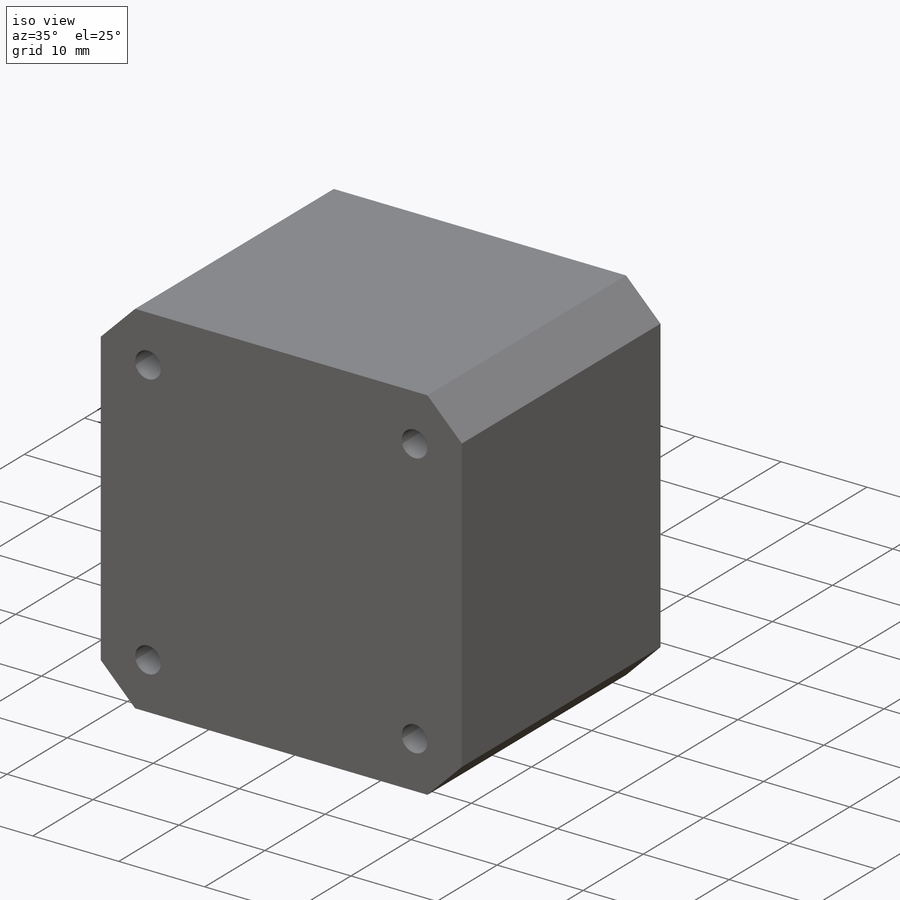
[diagram: iso view]
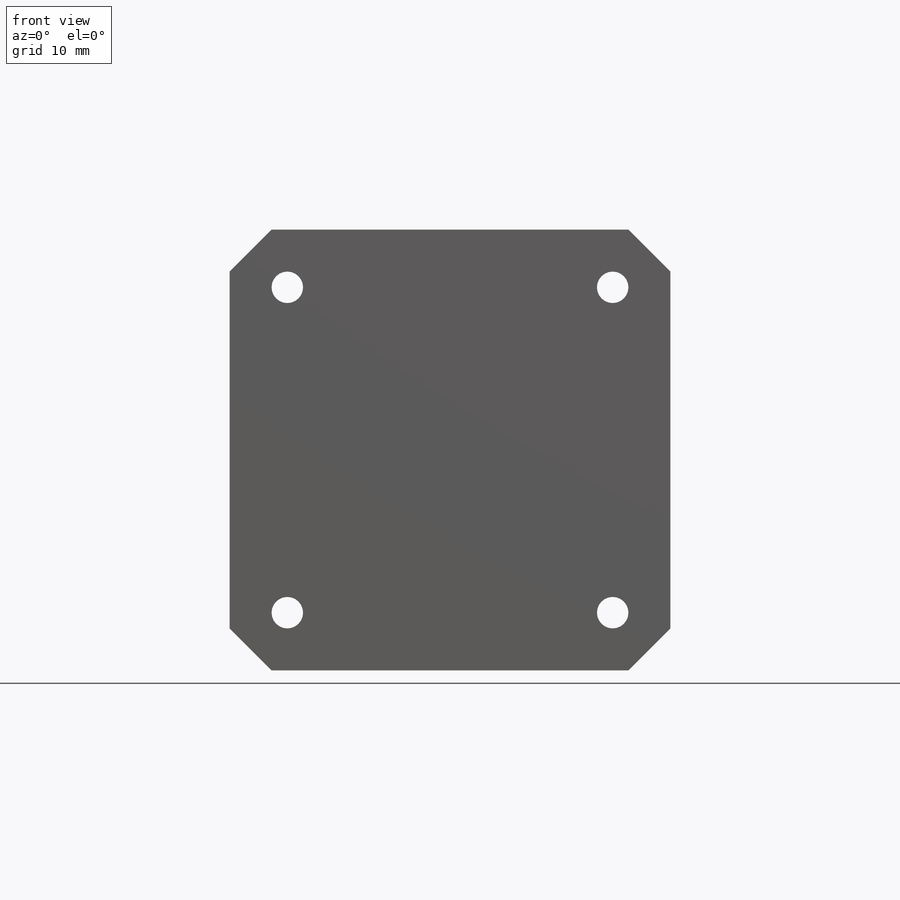
[diagram: front view]
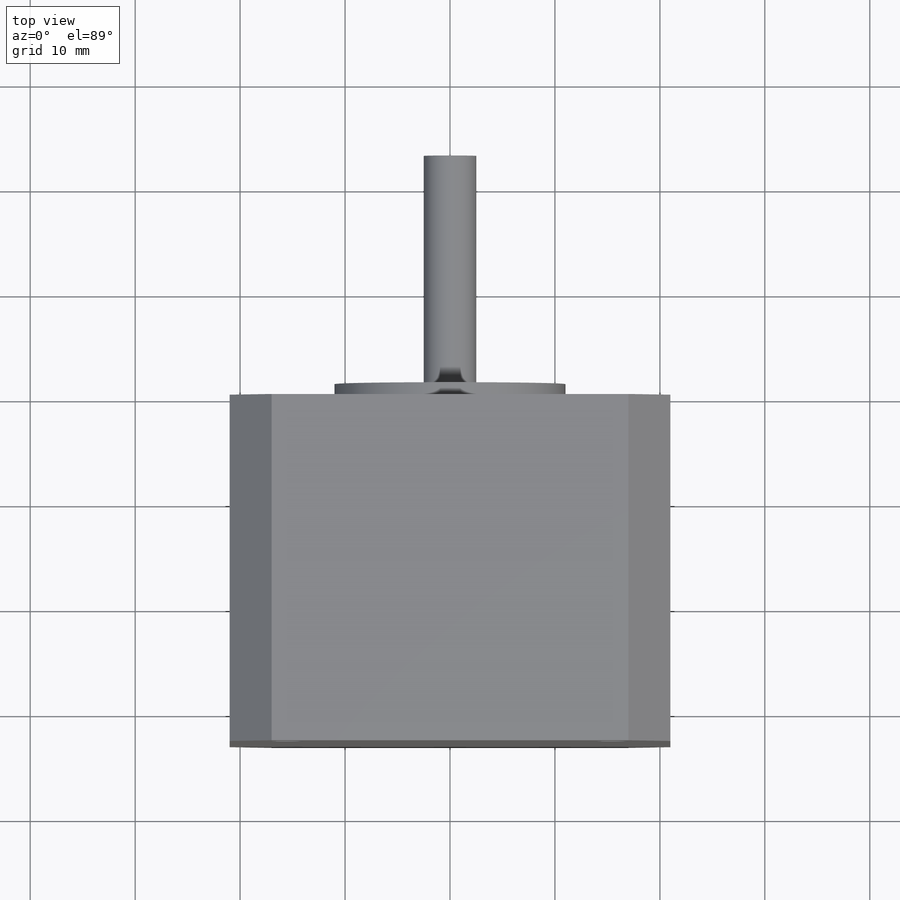
[diagram: top view]
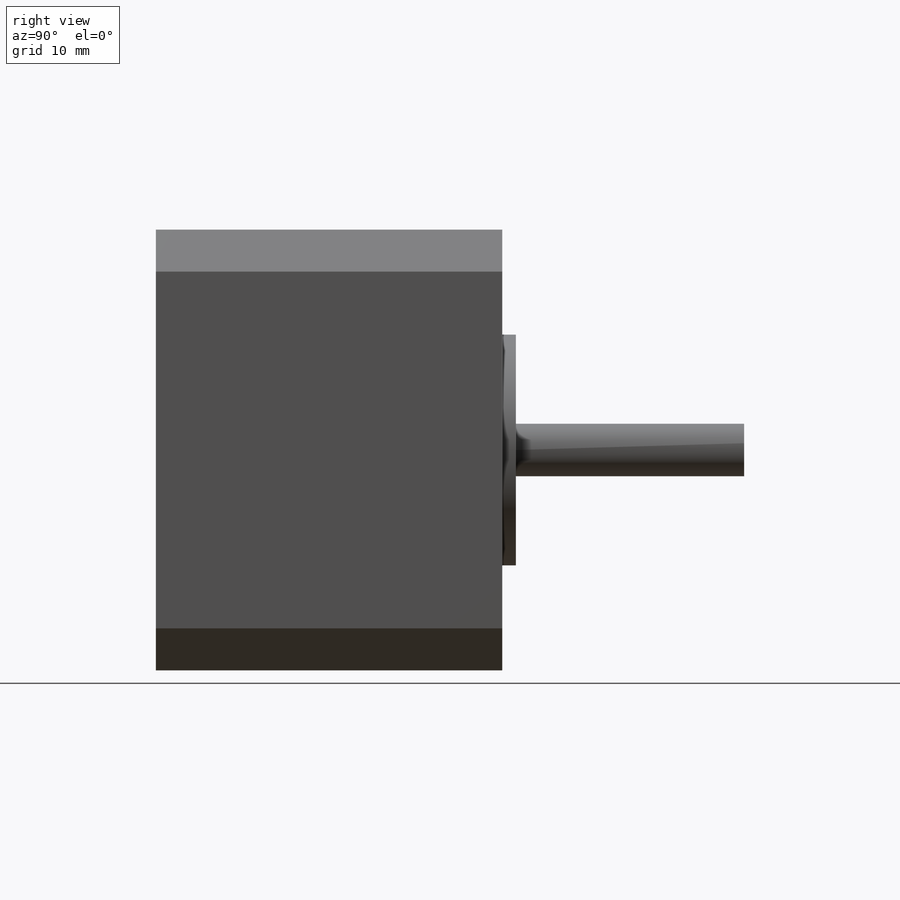
[diagram: right view]
SOLIDWORKS PART (.sldprt)
format: sldprt  version: not decoded by parser v0  size: 198,656 bytes
history: native  units: mm
features: sketch x4, plane x3, extrude x3, material x1, chamfer x1, cut_extrude x1 + 1 further entry (+9 scaffold rows collapsed)
feature tree (23):
  scaffold x9  (default folders/planes/origin — collapsed)
  material  "Materiał <nieokreślony>"
  plane  "Przednia"
  plane  "Górna"
  plane  "Prawa"
  "Początek ukł. współrzędnych"
  sketch  "Szkic1"  dims[D1=42.0mm D2=42.0mm]
  extrude  "Dodanie-wyciągnięcie1"  Depth=33mm
  chamfer  "Sfazowanie1"  Distance=4mm Angle=45deg
  sketch  "Szkic2"  dims[D1=22.0mm]
  extrude  "Dodanie-wyciągnięcie2"  Depth=1.3mm
  sketch  "Szkic3"  dims[D1=5.0mm]
  extrude  "Dodanie-wyciągnięcie3"  Depth=21.75mm
  sketch  "Szkic4"  dims[D2=3.0mm D1=31.0mm D3=31.0mm]
  cut_extrude  "Wytnij-wyciągnięcie1"  [1 undecoded]
decode coverage: 8 of 9 modeling features carry decoded parameters; 1 rows unclassified (native names shown)
note: 1 parameter value undecoded
note: suppression state not decoded; provenance and decode notes live in map.json
